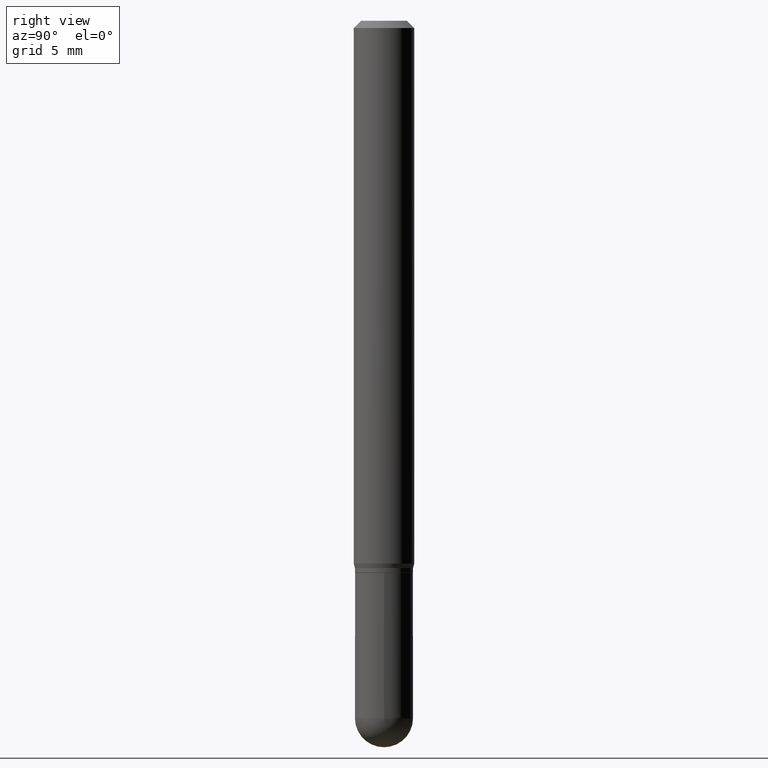
[diagram: clean part render]
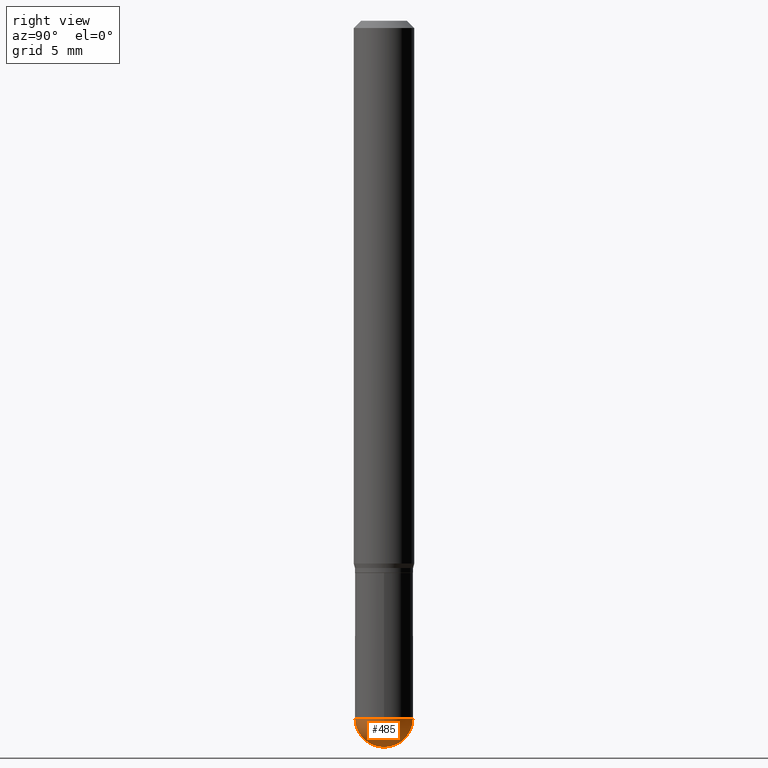
[diagram: same view with one face highlighted and labeled with its STEP entity id]
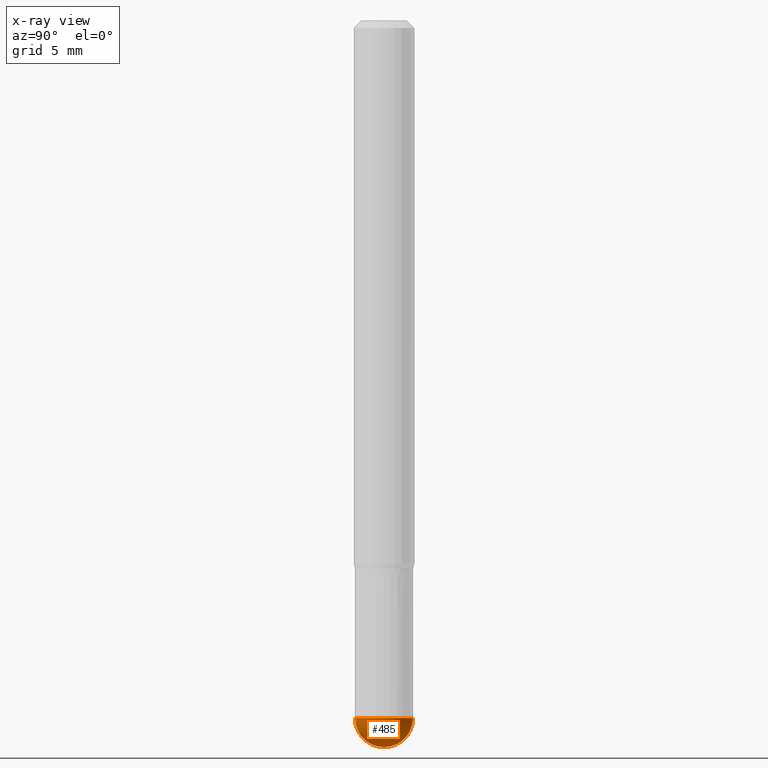
[diagram: x-ray of the same camera — body ghosted, the highlighted face saturated]
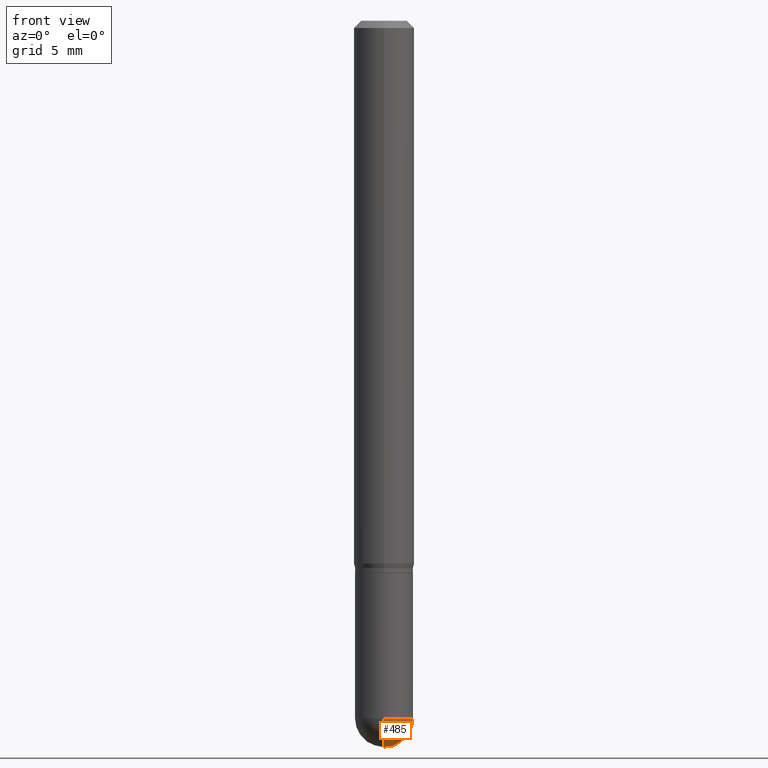
[diagram: same view with one face highlighted and labeled with its STEP entity id]
A machine part, right view. The second image highlights one B-rep face of the part: STEP entity #485.
The next image is the same camera in x-ray: the body ghosted, the highlighted face saturated — about 0% of this face is hidden behind the body in this view.
A second angle (front view) of the same face is appended — the face is thin or edge-on in the first view.
In plain terms, the highlighted spherical surface has radius 1.524 mm.
Its self-contained STEP definition (entity closure, byte-faithful):
#3 = DIRECTION ( 'NONE',  ( -1.000000000000000000, 6.982962677686265922E-15, -4.883557194083112340E-29 ) ) ;
#7 = CIRCLE ( 'NONE', #67, 0.05999999999999995615 ) ;
#33 = DIRECTION ( 'NONE',  ( 1.000000000000000000, -7.105427357601001070E-15, 4.926315508542082329E-29 ) ) ;
#35 = EDGE_LOOP ( 'NONE', ( #112, #479, #101, #182 ) ) ;
#53 = CARTESIAN_POINT ( 'NONE',  ( 4.263256414560951014E-16, 0.05999999999999495320, -1.440000000000000391 ) ) ;
#67 = AXIS2_PLACEMENT_3D ( 'NONE', #386, #33, #161 ) ;
#101 = ORIENTED_EDGE ( 'NONE', *, *, #125, .F. ) ;
#112 = ORIENTED_EDGE ( 'NONE', *, *, #165, .F. ) ;
#125 = EDGE_CURVE ( 'NONE', #314, #388, #365, .T. ) ;
#127 = CIRCLE ( 'NONE', #339, 0.05999999999999995615 ) ;
#161 = DIRECTION ( 'NONE',  ( 7.105427357601001070E-15, 1.000000000000000000, 0.000000000000000000 ) ) ;
#165 = EDGE_CURVE ( 'NONE', #222, #344, #127, .T. ) ;
#173 = EDGE_CURVE ( 'NONE', #222, #388, #7, .T. ) ;
#177 = CARTESIAN_POINT ( 'NONE',  ( -4.189777606611406419E-16, -0.06000000000000501460, -1.439999999999999947 ) ) ;
#180 = DIRECTION ( 'NONE',  ( -2.445468806185136597E-29, 3.491481338843145583E-15, 1.000000000000000000 ) ) ;
#182 = ORIENTED_EDGE ( 'NONE', *, *, #262, .F. ) ;
#189 = CARTESIAN_POINT ( 'NONE',  ( 3.660506712675090959E-29, -5.248243829457045539E-15, -1.500000000000000222 ) ) ;
#202 = AXIS2_PLACEMENT_3D ( 'NONE', #232, #425, #306 ) ;
#217 = CARTESIAN_POINT ( 'NONE',  ( 3.521475080906597305E-29, -5.027733127934130649E-15, -1.440000000000000169 ) ) ;
#222 = VERTEX_POINT ( 'NONE', #189 ) ;
#224 = AXIS2_PLACEMENT_3D ( 'NONE', #217, #180, #329 ) ;
#232 = CARTESIAN_POINT ( 'NONE',  ( 3.516344083171520973E-29, -5.035081008729014505E-15, -1.440000000000000169 ) ) ;
#262 = EDGE_CURVE ( 'NONE', #344, #314, #279, .T. ) ;
#272 = DIRECTION ( 'NONE',  ( -2.445468806185136597E-29, 3.491481338843145583E-15, 1.000000000000000000 ) ) ;
#275 = DIRECTION ( 'NONE',  ( -6.982962677686265922E-15, -1.000000000000000000, 0.000000000000000000 ) ) ;
#279 = CIRCLE ( 'NONE', #467, 0.06000000000000001166 ) ;
#303 = SPHERICAL_SURFACE ( 'NONE', #202, 0.05999999999999995615 ) ;
#306 = DIRECTION ( 'NONE',  ( -6.982962677686265922E-15, -1.000000000000000000, 4.553079989440442247E-15 ) ) ;
#311 = CARTESIAN_POINT ( 'NONE',  ( 3.521475080906597305E-29, -5.027733127934130649E-15, -1.440000000000000169 ) ) ;
#314 = VERTEX_POINT ( 'NONE', #457 ) ;
#320 = CARTESIAN_POINT ( 'NONE',  ( 3.516344083171520973E-29, -5.035081008729014505E-15, -1.440000000000000169 ) ) ;
#329 = DIRECTION ( 'NONE',  ( 1.000000000000000000, -6.982962677686266711E-15, 0.000000000000000000 ) ) ;
#339 = AXIS2_PLACEMENT_3D ( 'NONE', #320, #3, #275 ) ;
#344 = VERTEX_POINT ( 'NONE', #177 ) ;
#365 = CIRCLE ( 'NONE', #224, 0.06000000000000001166 ) ;
#386 = CARTESIAN_POINT ( 'NONE',  ( 3.516344083171520973E-29, -5.035081008729014505E-15, -1.440000000000000169 ) ) ;
#388 = VERTEX_POINT ( 'NONE', #53 ) ;
#425 = DIRECTION ( 'NONE',  ( 1.000000000000000000, -6.982962677686265922E-15, 4.883557194083112340E-29 ) ) ;
#430 = DIRECTION ( 'NONE',  ( 1.000000000000000000, -6.982962677686266711E-15, 0.000000000000000000 ) ) ;
#431 = FACE_OUTER_BOUND ( 'NONE', #35, .T. ) ;
#457 = CARTESIAN_POINT ( 'NONE',  ( 0.06000000000000001166, -4.922988687768835701E-15, -1.440000000000000169 ) ) ;
#467 = AXIS2_PLACEMENT_3D ( 'NONE', #311, #272, #430 ) ;
#479 = ORIENTED_EDGE ( 'NONE', *, *, #173, .T. ) ;
#485 = ADVANCED_FACE ( 'NONE', ( #431 ), #303, .T. ) ;